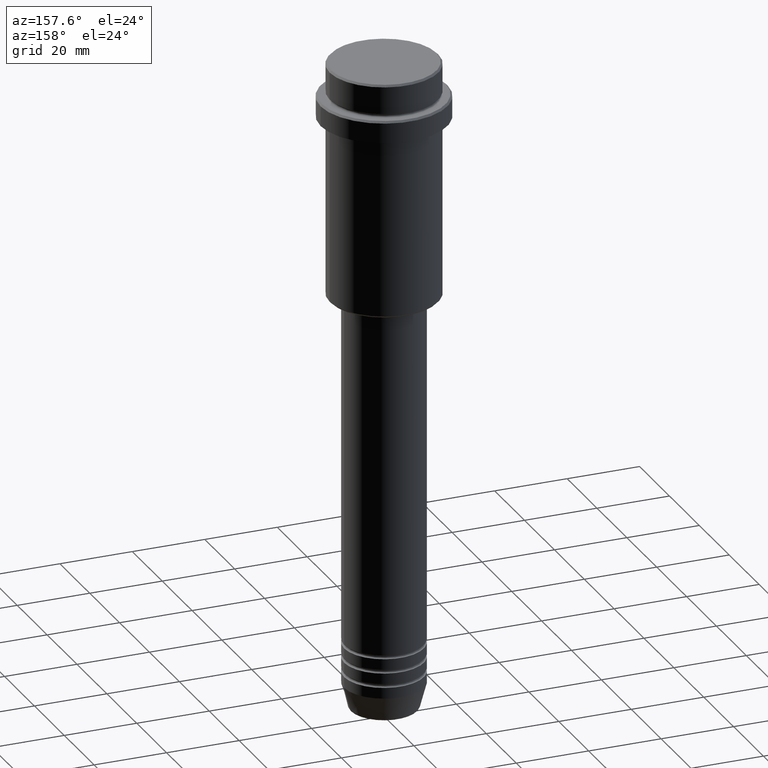
[diagram: clean part render]
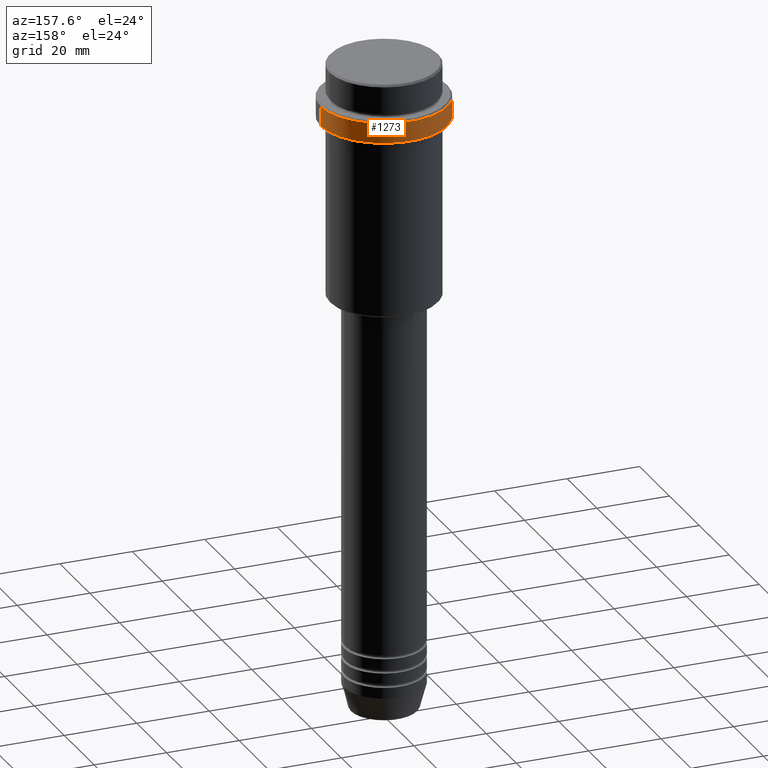
[diagram: same view with one face highlighted and labeled with its STEP entity id]
A machine part, auxiliary view. The second image highlights one B-rep face of the part: STEP entity #1273.
In plain terms, the highlighted cylindrical surface (partial cylindrical patch) has radius 17.5 mm, axis along (-0, -0, 1).
Its self-contained STEP definition (entity closure, byte-faithful):
#3 = CARTESIAN_POINT ( 'NONE',  ( 0.000000000000000000, 0.000000000000000000, 0.000000000000000000 ) ) ;
#19 = CARTESIAN_POINT ( 'NONE',  ( 17.50000000000000000, 0.000000000000000000, 0.000000000000000000 ) ) ;
#51 = ORIENTED_EDGE ( 'NONE', *, *, #142, .T. ) ;
#83 = EDGE_CURVE ( 'NONE', #445, #159, #478, .T. ) ;
#94 = ORIENTED_EDGE ( 'NONE', *, *, #83, .F. ) ;
#142 = EDGE_CURVE ( 'NONE', #868, #159, #788, .T. ) ;
#159 = VERTEX_POINT ( 'NONE', #783 ) ;
#167 = DIRECTION ( 'NONE',  ( -0.000000000000000000, -0.000000000000000000, 1.000000000000000000 ) ) ;
#241 = FACE_OUTER_BOUND ( 'NONE', #1237, .T. ) ;
#251 = CARTESIAN_POINT ( 'NONE',  ( -17.50000000000000000, 2.143131898507868248E-15, 0.000000000000000000 ) ) ;
#336 = AXIS2_PLACEMENT_3D ( 'NONE', #3, #659, #441 ) ;
#378 = AXIS2_PLACEMENT_3D ( 'NONE', #509, #167, #399 ) ;
#399 = DIRECTION ( 'NONE',  ( 1.000000000000000000, 0.000000000000000000, 0.000000000000000000 ) ) ;
#441 = DIRECTION ( 'NONE',  ( 1.000000000000000000, 0.000000000000000000, 0.000000000000000000 ) ) ;
#445 = VERTEX_POINT ( 'NONE', #890 ) ;
#446 = DIRECTION ( 'NONE',  ( -0.000000000000000000, -0.000000000000000000, 1.000000000000000000 ) ) ;
#453 = AXIS2_PLACEMENT_3D ( 'NONE', #886, #1111, #568 ) ;
#478 = LINE ( 'NONE', #19, #631 ) ;
#509 = CARTESIAN_POINT ( 'NONE',  ( 0.000000000000000000, 0.000000000000000000, -15.00000000000000000 ) ) ;
#559 = CYLINDRICAL_SURFACE ( 'NONE', #336, 17.50000000000000000 ) ;
#563 = VECTOR ( 'NONE', #446, 1000.000000000000000 ) ;
#568 = DIRECTION ( 'NONE',  ( 1.000000000000000000, 0.000000000000000000, 0.000000000000000000 ) ) ;
#628 = CIRCLE ( 'NONE', #378, 17.50000000000000000 ) ;
#631 = VECTOR ( 'NONE', #997, 1000.000000000000000 ) ;
#659 = DIRECTION ( 'NONE',  ( -0.000000000000000000, -0.000000000000000000, 1.000000000000000000 ) ) ;
#705 = EDGE_CURVE ( 'NONE', #445, #1391, #628, .T. ) ;
#783 = CARTESIAN_POINT ( 'NONE',  ( 17.50000000000000000, 0.000000000000000000, -9.500000000000000000 ) ) ;
#788 = CIRCLE ( 'NONE', #453, 17.50000000000000000 ) ;
#804 = ORIENTED_EDGE ( 'NONE', *, *, #705, .T. ) ;
#843 = CARTESIAN_POINT ( 'NONE',  ( -17.50000000000000000, 2.143131898507868248E-15, -9.500000000000000000 ) ) ;
#868 = VERTEX_POINT ( 'NONE', #843 ) ;
#886 = CARTESIAN_POINT ( 'NONE',  ( 0.000000000000000000, 0.000000000000000000, -9.500000000000000000 ) ) ;
#890 = CARTESIAN_POINT ( 'NONE',  ( 17.50000000000000000, 0.000000000000000000, -15.00000000000000000 ) ) ;
#997 = DIRECTION ( 'NONE',  ( -0.000000000000000000, -0.000000000000000000, 1.000000000000000000 ) ) ;
#1111 = DIRECTION ( 'NONE',  ( 0.000000000000000000, 0.000000000000000000, -1.000000000000000000 ) ) ;
#1115 = LINE ( 'NONE', #251, #563 ) ;
#1151 = CARTESIAN_POINT ( 'NONE',  ( -17.50000000000000000, 2.143131898507868248E-15, -15.00000000000000000 ) ) ;
#1189 = ORIENTED_EDGE ( 'NONE', *, *, #1306, .T. ) ;
#1237 = EDGE_LOOP ( 'NONE', ( #804, #1189, #51, #94 ) ) ;
#1273 = ADVANCED_FACE ( 'NONE', ( #241 ), #559, .T. ) ;
#1306 = EDGE_CURVE ( 'NONE', #1391, #868, #1115, .T. ) ;
#1391 = VERTEX_POINT ( 'NONE', #1151 ) ;